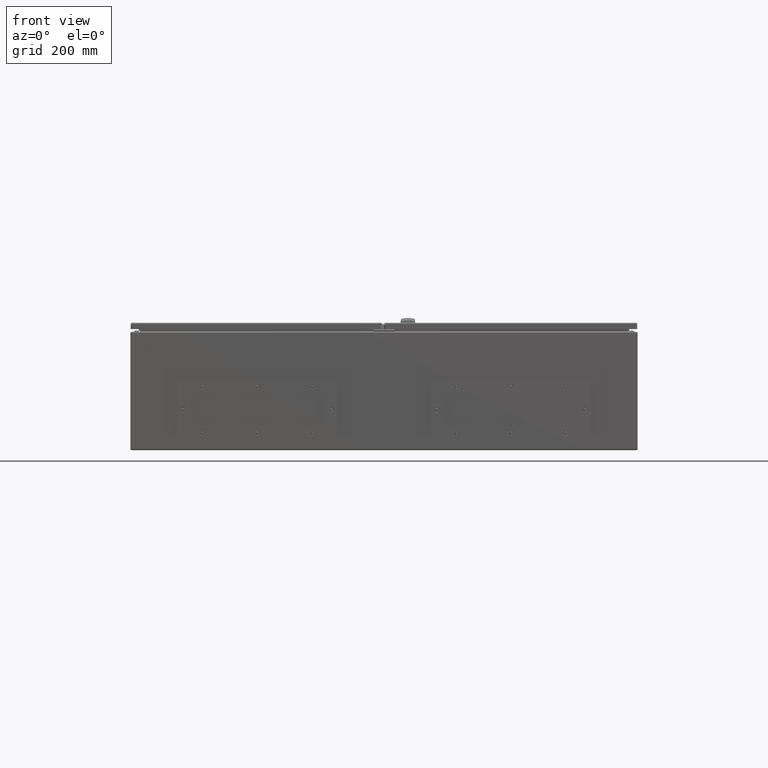
[diagram: clean part render]
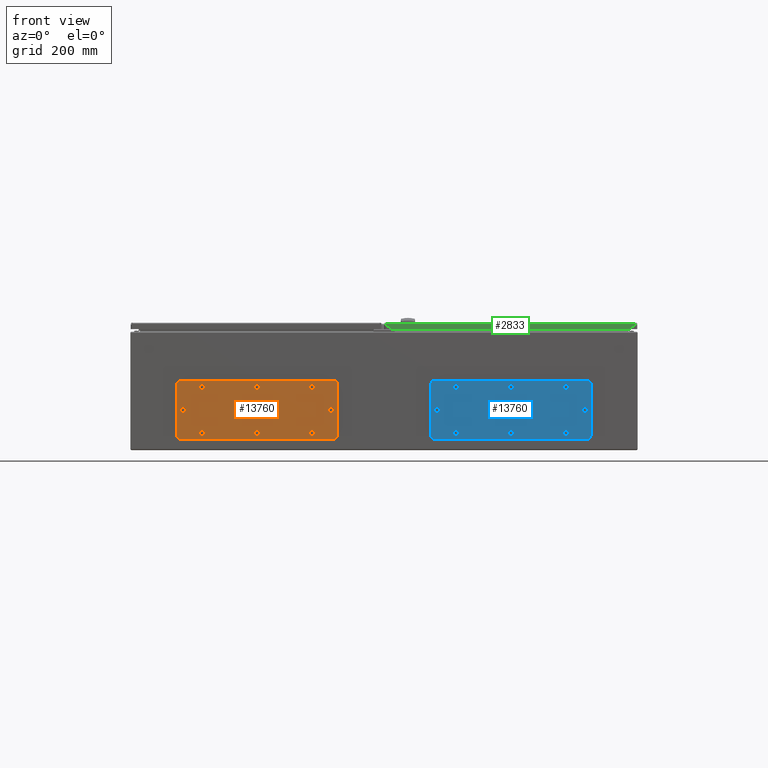
[diagram: same view with three faces highlighted in distinct colors, each labeled with its STEP entity id]
A machine part, front view with three faces highlighted in distinct colors.
Their STEP definitions:

[orange] entity #13760 — the highlighted planar face has unit normal (0, 1, 0).
#510 = DIRECTION ( 'NONE',  ( 0.01944479827874692100, -0.9998109320366021000, 0.0000000000000000000 ) ) ;
#526 = DIRECTION ( 'NONE',  ( 0.0000000000000000000, 0.0000000000000000000, -1.000000000000000000 ) ) ;
#529 = CARTESIAN_POINT ( 'NONE',  ( 175.0000000000000900, 7.052915043501256800E-014, 1.499999999907686300 ) ) ;
#1059 = DIRECTION ( 'NONE',  ( 0.0000000000000000000, 0.0000000000000000000, -1.000000000000000000 ) ) ;
#1079 = DIRECTION ( 'NONE',  ( 0.01944479827874692100, -0.9998109320366021000, 0.0000000000000000000 ) ) ;
#1123 = CARTESIAN_POINT ( 'NONE',  ( 130.0000000000000300, 54.99999999999995000, 1.499999999907686300 ) ) ;
#1194 = CARTESIAN_POINT ( 'NONE',  ( -180.0000000000000300, 69.99999999999997200, 1.500000000000000000 ) ) ;
#1201 = DIRECTION ( 'NONE',  ( -1.000000000000000000, 1.156482317317871200E-016, -0.0000000000000000000 ) ) ;
#13760 = ADVANCED_FACE ( 'NONE', ( #41910, #41892, #41921, #41923, #41915, #41913, #41919, #41922, #41924 ), #24781, .F. ) ;
#24781 = PLANE ( 'NONE',  #72295 ) ;
#24945 = DIRECTION ( 'NONE',  ( -0.0000000000000000000, 0.0000000000000000000, -1.000000000000000000 ) ) ;
#25119 = CARTESIAN_POINT ( 'NONE',  ( -180.0000000000000300, 60.00000000000000700, 1.500000000000000000 ) ) ;
#25740 = DIRECTION ( 'NONE',  ( -1.000000000000000000, 0.0000000000000000000, 0.0000000000000000000 ) ) ;
#26812 = CARTESIAN_POINT ( 'NONE',  ( 190.0000000000000600, -60.00000000000006400, 1.500000000000000000 ) ) ;
#41892 = FACE_BOUND ( 'NONE', #94646, .T. ) ;
#41910 = FACE_BOUND ( 'NONE', #96172, .T. ) ;
#41913 = FACE_BOUND ( 'NONE', #96192, .T. ) ;
#41915 = FACE_BOUND ( 'NONE', #94650, .T. ) ;
#41919 = FACE_BOUND ( 'NONE', #96189, .T. ) ;
#41921 = FACE_BOUND ( 'NONE', #96123, .T. ) ;
#41922 = FACE_BOUND ( 'NONE', #94865, .T. ) ;
#41923 = FACE_BOUND ( 'NONE', #96219, .T. ) ;
#41924 = FACE_OUTER_BOUND ( 'NONE', #96084, .T. ) ;
#49137 = DIRECTION ( 'NONE',  ( -0.0000000000000000000, 1.000000000000000000, -0.0000000000000000000 ) ) ;
#49164 = DIRECTION ( 'NONE',  ( 1.000000000000000000, 0.0000000000000000000, 0.0000000000000000000 ) ) ;
#49183 = CARTESIAN_POINT ( 'NONE',  ( -2.208518486838413600E-014, 54.99999999999999300, 1.499999999907686300 ) ) ;
#49201 = DIRECTION ( 'NONE',  ( 0.01944479827874692100, 0.9998109320366021000, 0.0000000000000000000 ) ) ;
#49210 = CARTESIAN_POINT ( 'NONE',  ( 130.0000000000000300, 54.99999999999995000, 1.499999999907686300 ) ) ;
#49223 = CARTESIAN_POINT ( 'NONE',  ( 130.0000000000000300, -54.99999999999995000, 1.499999999907686300 ) ) ;
#49243 = CARTESIAN_POINT ( 'NONE',  ( -180.0000000000000300, 60.00000000000000700, 1.500000000000000000 ) ) ;
#49266 = CARTESIAN_POINT ( 'NONE',  ( -175.0000000000000900, 7.052915043501256800E-014, 1.499999999907686300 ) ) ;
#49275 = DIRECTION ( 'NONE',  ( -0.0000000000000000000, -0.0000000000000000000, 1.000000000000000000 ) ) ;
#49300 = DIRECTION ( 'NONE',  ( -0.01944479827874607400, 0.9998109320366021000, 0.0000000000000000000 ) ) ;
#49309 = DIRECTION ( 'NONE',  ( 0.0000000000000000000, 0.0000000000000000000, 1.000000000000000000 ) ) ;
#49312 = DIRECTION ( 'NONE',  ( 0.0000000000000000000, 0.0000000000000000000, 1.000000000000000000 ) ) ;
#49334 = CARTESIAN_POINT ( 'NONE',  ( -2.208518486838413600E-014, 54.99999999999999300, 1.499999999907686300 ) ) ;
#49339 = DIRECTION ( 'NONE',  ( -0.0000000000000000000, -0.0000000000000000000, 1.000000000000000000 ) ) ;
#49350 = CARTESIAN_POINT ( 'NONE',  ( 190.0000000000000900, 60.00000000000006400, 1.500000000000000000 ) ) ;
#49396 = DIRECTION ( 'NONE',  ( 0.0000000000000000000, -0.0000000000000000000, -1.000000000000000000 ) ) ;
#49460 = DIRECTION ( 'NONE',  ( -0.0000000000000000000, -0.0000000000000000000, 1.000000000000000000 ) ) ;
#49471 = DIRECTION ( 'NONE',  ( 0.0000000000000000000, -0.0000000000000000000, -1.000000000000000000 ) ) ;
#49483 = DIRECTION ( 'NONE',  ( -0.01944479827874692100, 0.9998109320366021000, 0.0000000000000000000 ) ) ;
#49536 = DIRECTION ( 'NONE',  ( 0.0000000000000000000, -0.0000000000000000000, -1.000000000000000000 ) ) ;
#49551 = CARTESIAN_POINT ( 'NONE',  ( -130.0000000000000300, -54.99999999999995000, 1.499999999907686300 ) ) ;
#49555 = CARTESIAN_POINT ( 'NONE',  ( -130.0000000000000300, -54.99999999999995000, 1.499999999907686300 ) ) ;
#49561 = DIRECTION ( 'NONE',  ( -0.01944479827874607400, -0.9998109320366021000, 0.0000000000000000000 ) ) ;
#49603 = DIRECTION ( 'NONE',  ( -0.0000000000000000000, -0.0000000000000000000, 1.000000000000000000 ) ) ;
#49628 = CARTESIAN_POINT ( 'NONE',  ( -190.0000000000000900, 60.00000000000002100, 1.500000000000000000 ) ) ;
#49635 = DIRECTION ( 'NONE',  ( -0.0000000000000000000, -0.0000000000000000000, 1.000000000000000000 ) ) ;
#49658 = DIRECTION ( 'NONE',  ( -0.0000000000000000000, 0.0000000000000000000, 1.000000000000000000 ) ) ;
#49665 = DIRECTION ( 'NONE',  ( 1.000000000000000000, 0.0000000000000000000, 0.0000000000000000000 ) ) ;
#49679 = DIRECTION ( 'NONE',  ( 1.000000000000000000, 1.156482317317871200E-016, 0.0000000000000000000 ) ) ;
#49696 = DIRECTION ( 'NONE',  ( 0.0000000000000000000, -0.0000000000000000000, -1.000000000000000000 ) ) ;
#49741 = CARTESIAN_POINT ( 'NONE',  ( -180.0000000000000300, -69.99999999999997200, 1.500000000000000000 ) ) ;
#49749 = CARTESIAN_POINT ( 'NONE',  ( -175.0000000000000900, 7.052915043501256800E-014, 1.499999999907686300 ) ) ;
#49782 = CARTESIAN_POINT ( 'NONE',  ( 175.0000000000000900, 7.052915043501256800E-014, 1.499999999907686300 ) ) ;
#49790 = DIRECTION ( 'NONE',  ( -0.01944479827874692100, 0.9998109320366021000, 0.0000000000000000000 ) ) ;
#49793 = CARTESIAN_POINT ( 'NONE',  ( 180.0000000000000900, 59.99999999999996400, 1.500000000000000000 ) ) ;
#49796 = DIRECTION ( 'NONE',  ( 0.01944479827874692100, -0.9998109320366021000, 0.0000000000000000000 ) ) ;
#49872 = DIRECTION ( 'NONE',  ( -0.01944479827874692100, -0.9998109320366021000, 0.0000000000000000000 ) ) ;
#49895 = DIRECTION ( 'NONE',  ( 1.000000000000000000, 0.0000000000000000000, 0.0000000000000000000 ) ) ;
#49927 = DIRECTION ( 'NONE',  ( -1.000000000000000000, 0.0000000000000000000, 0.0000000000000000000 ) ) ;
#49953 = DIRECTION ( 'NONE',  ( -0.01944479827874692100, -0.9998109320366021000, 0.0000000000000000000 ) ) ;
#50057 = DIRECTION ( 'NONE',  ( 0.0000000000000000000, 0.0000000000000000000, -1.000000000000000000 ) ) ;
#50132 = DIRECTION ( 'NONE',  ( -0.0000000000000000000, 0.0000000000000000000, 1.000000000000000000 ) ) ;
#50135 = DIRECTION ( 'NONE',  ( -0.01944479827874692100, -0.9998109320366021000, 0.0000000000000000000 ) ) ;
#50140 = DIRECTION ( 'NONE',  ( 0.01944479827874692100, -0.9998109320366021000, 0.0000000000000000000 ) ) ;
#50150 = CARTESIAN_POINT ( 'NONE',  ( -130.0000000000000300, 54.99999999999995000, 1.499999999907686300 ) ) ;
#50151 = CARTESIAN_POINT ( 'NONE',  ( -130.0000000000000300, 54.99999999999995000, 1.499999999907686300 ) ) ;
#50161 = CARTESIAN_POINT ( 'NONE',  ( -2.208518486838413600E-014, -54.99999999999999300, 1.499999999907686300 ) ) ;
#50237 = DIRECTION ( 'NONE',  ( -0.01944479827874692100, -0.9998109320366021000, 0.0000000000000000000 ) ) ;
#50252 = DIRECTION ( 'NONE',  ( 0.0000000000000000000, 0.0000000000000000000, 1.000000000000000000 ) ) ;
#50344 = CARTESIAN_POINT ( 'NONE',  ( 180.0000000000000900, -59.99999999999996400, 1.500000000000000000 ) ) ;
#50382 = DIRECTION ( 'NONE',  ( 0.01944479827874692100, 0.9998109320366021000, 0.0000000000000000000 ) ) ;
#50447 = DIRECTION ( 'NONE',  ( -0.0000000000000000000, -0.0000000000000000000, 1.000000000000000000 ) ) ;
#50449 = DIRECTION ( 'NONE',  ( 4.625929269271481000E-016, -1.000000000000000000, 0.0000000000000000000 ) ) ;
#50453 = DIRECTION ( 'NONE',  ( 0.0000000000000000000, 0.0000000000000000000, 1.000000000000000000 ) ) ;
#50483 = DIRECTION ( 'NONE',  ( -0.01944479827874607400, -0.9998109320366021000, 0.0000000000000000000 ) ) ;
#50486 = CARTESIAN_POINT ( 'NONE',  ( -2.208518486838413600E-014, -54.99999999999999300, 1.499999999907686300 ) ) ;
#50513 = DIRECTION ( 'NONE',  ( -0.01944479827874607400, 0.9998109320366021000, 0.0000000000000000000 ) ) ;
#50516 = DIRECTION ( 'NONE',  ( 0.0000000000000000000, 0.0000000000000000000, -1.000000000000000000 ) ) ;
#50575 = CARTESIAN_POINT ( 'NONE',  ( 130.0000000000000300, -54.99999999999995000, 1.499999999907686300 ) ) ;
#50666 = CARTESIAN_POINT ( 'NONE',  ( -180.0000000000000300, -60.00000000000000700, 1.500000000000000000 ) ) ;
#51064 = EDGE_CURVE ( 'NONE', #61314, #61284, #71144, .T. ) ;
#51067 = EDGE_CURVE ( 'NONE', #59449, #59029, #71140, .T. ) ;
#51105 = EDGE_CURVE ( 'NONE', #61456, #61336, #71244, .T. ) ;
#51115 = EDGE_CURVE ( 'NONE', #59517, #59404, #71257, .T. ) ;
#51116 = EDGE_CURVE ( 'NONE', #58960, #60235, #71268, .T. ) ;
#51118 = EDGE_CURVE ( 'NONE', #61336, #61456, #71273, .T. ) ;
#51120 = EDGE_CURVE ( 'NONE', #59564, #59419, #71280, .T. ) ;
#51127 = EDGE_CURVE ( 'NONE', #61331, #61292, #71298, .T. ) ;
#51131 = EDGE_CURVE ( 'NONE', #58600, #61132, #71309, .T. ) ;
#51134 = EDGE_CURVE ( 'NONE', #61255, #61222, #71316, .T. ) ;
#51136 = EDGE_CURVE ( 'NONE', #61146, #61141, #71320, .T. ) ;
#51139 = EDGE_CURVE ( 'NONE', #61284, #61314, #71329, .T. ) ;
#51152 = EDGE_CURVE ( 'NONE', #60091, #59449, #71363, .T. ) ;
#51154 = EDGE_CURVE ( 'NONE', #58478, #60091, #71365, .T. ) ;
#51160 = EDGE_CURVE ( 'NONE', #59404, #58478, #71386, .T. ) ;
#51166 = EDGE_CURVE ( 'NONE', #60278, #59517, #71401, .T. ) ;
#51178 = EDGE_CURVE ( 'NONE', #59029, #58867, #71433, .T. ) ;
#51185 = EDGE_CURVE ( 'NONE', #59419, #59564, #71449, .T. ) ;
#51198 = EDGE_CURVE ( 'NONE', #58867, #60278, #71473, .T. ) ;
#51222 = EDGE_CURVE ( 'NONE', #60235, #58960, #71542, .T. ) ;
#51258 = EDGE_CURVE ( 'NONE', #61132, #58600, #56219, .T. ) ;
#51425 = EDGE_CURVE ( 'NONE', #61141, #61146, #56497, .T. ) ;
#51442 = EDGE_CURVE ( 'NONE', #61292, #61331, #56522, .T. ) ;
#51513 = EDGE_CURVE ( 'NONE', #61222, #61255, #56622, .T. ) ;
#56219 = CIRCLE ( 'NONE', #73862, 6.383543879575676700 ) ;
#56497 = CIRCLE ( 'NONE', #73776, 6.383543879575676700 ) ;
#56522 = CIRCLE ( 'NONE', #72897, 6.383543879575676700 ) ;
#56622 = CIRCLE ( 'NONE', #73404, 6.383543879575676700 ) ;
#58478 = VERTEX_POINT ( 'NONE', #26812 ) ;
#58600 = VERTEX_POINT ( 'NONE', #65915 ) ;
#58867 = VERTEX_POINT ( 'NONE', #66504 ) ;
#58960 = VERTEX_POINT ( 'NONE', #66962 ) ;
#59029 = VERTEX_POINT ( 'NONE', #65897 ) ;
#59404 = VERTEX_POINT ( 'NONE', #65688 ) ;
#59419 = VERTEX_POINT ( 'NONE', #67678 ) ;
#59449 = VERTEX_POINT ( 'NONE', #66206 ) ;
#59517 = VERTEX_POINT ( 'NONE', #65707 ) ;
#59564 = VERTEX_POINT ( 'NONE', #66211 ) ;
#60091 = VERTEX_POINT ( 'NONE', #66648 ) ;
#60235 = VERTEX_POINT ( 'NONE', #66183 ) ;
#60278 = VERTEX_POINT ( 'NONE', #65899 ) ;
#61132 = VERTEX_POINT ( 'NONE', #66586 ) ;
#61141 = VERTEX_POINT ( 'NONE', #65974 ) ;
#61146 = VERTEX_POINT ( 'NONE', #66169 ) ;
#61222 = VERTEX_POINT ( 'NONE', #65840 ) ;
#61255 = VERTEX_POINT ( 'NONE', #65658 ) ;
#61284 = VERTEX_POINT ( 'NONE', #65711 ) ;
#61292 = VERTEX_POINT ( 'NONE', #65865 ) ;
#61314 = VERTEX_POINT ( 'NONE', #65666 ) ;
#61331 = VERTEX_POINT ( 'NONE', #66139 ) ;
#61336 = VERTEX_POINT ( 'NONE', #65953 ) ;
#61456 = VERTEX_POINT ( 'NONE', #66181 ) ;
#65658 = CARTESIAN_POINT ( 'NONE',  ( 130.1241267230419100, -48.61766304406484800, 1.499999999907686500 ) ) ;
#65666 = CARTESIAN_POINT ( 'NONE',  ( 129.8758732769581500, 61.38233695593505200, 1.499999999907686500 ) ) ;
#65688 = CARTESIAN_POINT ( 'NONE',  ( 180.0000000000000900, -69.99999999999992900, 1.500000000000000000 ) ) ;
#65707 = CARTESIAN_POINT ( 'NONE',  ( -180.0000000000000300, -69.99999999999998600, 1.500000000000000000 ) ) ;
#65711 = CARTESIAN_POINT ( 'NONE',  ( 130.1241267230419100, 48.61766304406484800, 1.499999999907686500 ) ) ;
#65840 = CARTESIAN_POINT ( 'NONE',  ( 129.8758732769581500, -61.38233695593505200, 1.499999999907686500 ) ) ;
#65865 = CARTESIAN_POINT ( 'NONE',  ( -0.1241267230418952500, -48.61766304406489100, 1.499999999907686500 ) ) ;
#65897 = CARTESIAN_POINT ( 'NONE',  ( -180.0000000000000300, 69.99999999999997200, 1.500000000000000000 ) ) ;
#65899 = CARTESIAN_POINT ( 'NONE',  ( -190.0000000000000300, -60.00000000000011400, 1.500000000000000000 ) ) ;
#65915 = CARTESIAN_POINT ( 'NONE',  ( -130.1241267230419100, 48.61766304406484800, 1.499999999907686500 ) ) ;
#65953 = CARTESIAN_POINT ( 'NONE',  ( 174.8758732769582000, 6.382336955935173300, 1.499999999907686500 ) ) ;
#65974 = CARTESIAN_POINT ( 'NONE',  ( -130.1241267230419100, -48.61766304406484800, 1.499999999907686500 ) ) ;
#66139 = CARTESIAN_POINT ( 'NONE',  ( 0.1241267230418518200, -61.38233695593509500, 1.499999999907686500 ) ) ;
#66169 = CARTESIAN_POINT ( 'NONE',  ( -129.8758732769581500, -61.38233695593505200, 1.499999999907686500 ) ) ;
#66181 = CARTESIAN_POINT ( 'NONE',  ( 175.1241267230419400, -6.382336955935032900, 1.499999999907686500 ) ) ;
#66183 = CARTESIAN_POINT ( 'NONE',  ( -174.8758732769582000, 6.382336955935173300, 1.499999999907686500 ) ) ;
#66206 = CARTESIAN_POINT ( 'NONE',  ( 180.0000000000000900, 69.99999999999995700, 1.500000000000000000 ) ) ;
#66211 = CARTESIAN_POINT ( 'NONE',  ( -0.1241267230418952500, 48.61766304406489100, 1.499999999907686500 ) ) ;
#66504 = CARTESIAN_POINT ( 'NONE',  ( -190.0000000000000900, 60.00000000000002100, 1.500000000000000000 ) ) ;
#66586 = CARTESIAN_POINT ( 'NONE',  ( -129.8758732769581500, 61.38233695593505200, 1.499999999907686500 ) ) ;
#66648 = CARTESIAN_POINT ( 'NONE',  ( 190.0000000000000900, 60.00000000000006400, 1.500000000000000000 ) ) ;
#66962 = CARTESIAN_POINT ( 'NONE',  ( -175.1241267230419400, -6.382336955935032900, 1.499999999907686500 ) ) ;
#67678 = CARTESIAN_POINT ( 'NONE',  ( 0.1241267230418502800, 61.38233695593509500, 1.499999999907686500 ) ) ;
#71128 = VECTOR ( 'NONE', #1201, 1000.000000000000000 ) ;
#71140 = LINE ( 'NONE', #1194, #71128 ) ;
#71144 = CIRCLE ( 'NONE', #73515, 6.383543879575676700 ) ;
#71244 = CIRCLE ( 'NONE', #73241, 6.383543879575675800 ) ;
#71250 = VECTOR ( 'NONE', #49679, 1000.000000000000000 ) ;
#71257 = LINE ( 'NONE', #49741, #71250 ) ;
#71268 = CIRCLE ( 'NONE', #72979, 6.383543879575675800 ) ;
#71273 = CIRCLE ( 'NONE', #73860, 6.383543879575675800 ) ;
#71280 = CIRCLE ( 'NONE', #73597, 6.383543879575676700 ) ;
#71298 = CIRCLE ( 'NONE', #73283, 6.383543879575676700 ) ;
#71309 = CIRCLE ( 'NONE', #73864, 6.383543879575676700 ) ;
#71316 = CIRCLE ( 'NONE', #73145, 6.383543879575676700 ) ;
#71320 = CIRCLE ( 'NONE', #72831, 6.383543879575676700 ) ;
#71329 = CIRCLE ( 'NONE', #73520, 6.383543879575676700 ) ;
#71363 = CIRCLE ( 'NONE', #73700, 9.999999999999980500 ) ;
#71365 = LINE ( 'NONE', #49350, #71367 ) ;
#71367 = VECTOR ( 'NONE', #49137, 1000.000000000000000 ) ;
#71386 = CIRCLE ( 'NONE', #73373, 9.999999999999980500 ) ;
#71401 = CIRCLE ( 'NONE', #73005, 9.999999999999980500 ) ;
#71433 = CIRCLE ( 'NONE', #73314, 10.00000000000000900 ) ;
#71449 = CIRCLE ( 'NONE', #73804, 6.383543879575676700 ) ;
#71473 = LINE ( 'NONE', #49628, #71477 ) ;
#71477 = VECTOR ( 'NONE', #50449, 1000.000000000000000 ) ;
#71542 = CIRCLE ( 'NONE', #73138, 6.383543879575675800 ) ;
#72295 = AXIS2_PLACEMENT_3D ( 'NONE', #25119, #24945, #25740 ) ;
#72831 = AXIS2_PLACEMENT_3D ( 'NONE', #49551, #49471, #49790 ) ;
#72897 = AXIS2_PLACEMENT_3D ( 'NONE', #50161, #49396, #50513 ) ;
#72979 = AXIS2_PLACEMENT_3D ( 'NONE', #49266, #49339, #50237 ) ;
#73005 = AXIS2_PLACEMENT_3D ( 'NONE', #50666, #50252, #49895 ) ;
#73138 = AXIS2_PLACEMENT_3D ( 'NONE', #49749, #49275, #49872 ) ;
#73145 = AXIS2_PLACEMENT_3D ( 'NONE', #50575, #49658, #49201 ) ;
#73241 = AXIS2_PLACEMENT_3D ( 'NONE', #529, #526, #510 ) ;
#73283 = AXIS2_PLACEMENT_3D ( 'NONE', #50486, #49536, #49300 ) ;
#73314 = AXIS2_PLACEMENT_3D ( 'NONE', #49243, #50453, #49927 ) ;
#73373 = AXIS2_PLACEMENT_3D ( 'NONE', #50344, #49312, #49665 ) ;
#73404 = AXIS2_PLACEMENT_3D ( 'NONE', #49223, #50132, #50382 ) ;
#73515 = AXIS2_PLACEMENT_3D ( 'NONE', #1123, #1059, #1079 ) ;
#73520 = AXIS2_PLACEMENT_3D ( 'NONE', #49210, #50516, #49796 ) ;
#73597 = AXIS2_PLACEMENT_3D ( 'NONE', #49183, #49460, #50483 ) ;
#73700 = AXIS2_PLACEMENT_3D ( 'NONE', #49793, #49309, #49164 ) ;
#73776 = AXIS2_PLACEMENT_3D ( 'NONE', #49555, #49696, #49483 ) ;
#73804 = AXIS2_PLACEMENT_3D ( 'NONE', #49334, #49603, #49561 ) ;
#73860 = AXIS2_PLACEMENT_3D ( 'NONE', #49782, #50057, #50140 ) ;
#73862 = AXIS2_PLACEMENT_3D ( 'NONE', #50150, #49635, #50135 ) ;
#73864 = AXIS2_PLACEMENT_3D ( 'NONE', #50151, #50447, #49953 ) ;
#77263 = ORIENTED_EDGE ( 'NONE', *, *, #51064, .T. ) ;
#77265 = ORIENTED_EDGE ( 'NONE', *, *, #51136, .T. ) ;
#77266 = ORIENTED_EDGE ( 'NONE', *, *, #51105, .T. ) ;
#77267 = ORIENTED_EDGE ( 'NONE', *, *, #51134, .F. ) ;
#77271 = ORIENTED_EDGE ( 'NONE', *, *, #51513, .F. ) ;
#77273 = ORIENTED_EDGE ( 'NONE', *, *, #51442, .T. ) ;
#77276 = ORIENTED_EDGE ( 'NONE', *, *, #51118, .T. ) ;
#77279 = ORIENTED_EDGE ( 'NONE', *, *, #51120, .F. ) ;
#77289 = ORIENTED_EDGE ( 'NONE', *, *, #51185, .F. ) ;
#77292 = ORIENTED_EDGE ( 'NONE', *, *, #51131, .F. ) ;
#77305 = ORIENTED_EDGE ( 'NONE', *, *, #51154, .T. ) ;
#77306 = ORIENTED_EDGE ( 'NONE', *, *, #51152, .T. ) ;
#77307 = ORIENTED_EDGE ( 'NONE', *, *, #51067, .T. ) ;
#77338 = ORIENTED_EDGE ( 'NONE', *, *, #51127, .T. ) ;
#77339 = ORIENTED_EDGE ( 'NONE', *, *, #51139, .T. ) ;
#77351 = ORIENTED_EDGE ( 'NONE', *, *, #51178, .T. ) ;
#77352 = ORIENTED_EDGE ( 'NONE', *, *, #51222, .F. ) ;
#77383 = ORIENTED_EDGE ( 'NONE', *, *, #51425, .T. ) ;
#77425 = ORIENTED_EDGE ( 'NONE', *, *, #51166, .T. ) ;
#77431 = ORIENTED_EDGE ( 'NONE', *, *, #51198, .T. ) ;
#77449 = ORIENTED_EDGE ( 'NONE', *, *, #51258, .F. ) ;
#77452 = ORIENTED_EDGE ( 'NONE', *, *, #51116, .F. ) ;
#77498 = ORIENTED_EDGE ( 'NONE', *, *, #51160, .T. ) ;
#77500 = ORIENTED_EDGE ( 'NONE', *, *, #51115, .T. ) ;
#94646 = EDGE_LOOP ( 'NONE', ( #77267, #77271 ) ) ;
#94650 = EDGE_LOOP ( 'NONE', ( #77266, #77276 ) ) ;
#94865 = EDGE_LOOP ( 'NONE', ( #77452, #77352 ) ) ;
#96084 = EDGE_LOOP ( 'NONE', ( #77351, #77431, #77425, #77500, #77498, #77305, #77306, #77307 ) ) ;
#96123 = EDGE_LOOP ( 'NONE', ( #77273, #77338 ) ) ;
#96172 = EDGE_LOOP ( 'NONE', ( #77383, #77265 ) ) ;
#96189 = EDGE_LOOP ( 'NONE', ( #77292, #77449 ) ) ;
#96192 = EDGE_LOOP ( 'NONE', ( #77279, #77289 ) ) ;
#96219 = EDGE_LOOP ( 'NONE', ( #77339, #77263 ) ) ;

[blue] entity #13760 — the highlighted planar face has unit normal (0, 1, -0).
#510 = DIRECTION ( 'NONE',  ( 0.01944479827874692100, -0.9998109320366021000, 0.0000000000000000000 ) ) ;
#526 = DIRECTION ( 'NONE',  ( 0.0000000000000000000, 0.0000000000000000000, -1.000000000000000000 ) ) ;
#529 = CARTESIAN_POINT ( 'NONE',  ( 175.0000000000000900, 7.052915043501256800E-014, 1.499999999907686300 ) ) ;
#1059 = DIRECTION ( 'NONE',  ( 0.0000000000000000000, 0.0000000000000000000, -1.000000000000000000 ) ) ;
#1079 = DIRECTION ( 'NONE',  ( 0.01944479827874692100, -0.9998109320366021000, 0.0000000000000000000 ) ) ;
#1123 = CARTESIAN_POINT ( 'NONE',  ( 130.0000000000000300, 54.99999999999995000, 1.499999999907686300 ) ) ;
#1194 = CARTESIAN_POINT ( 'NONE',  ( -180.0000000000000300, 69.99999999999997200, 1.500000000000000000 ) ) ;
#1201 = DIRECTION ( 'NONE',  ( -1.000000000000000000, 1.156482317317871200E-016, -0.0000000000000000000 ) ) ;
#13760 = ADVANCED_FACE ( 'NONE', ( #41910, #41892, #41921, #41923, #41915, #41913, #41919, #41922, #41924 ), #24781, .F. ) ;
#24781 = PLANE ( 'NONE',  #72295 ) ;
#24945 = DIRECTION ( 'NONE',  ( -0.0000000000000000000, 0.0000000000000000000, -1.000000000000000000 ) ) ;
#25119 = CARTESIAN_POINT ( 'NONE',  ( -180.0000000000000300, 60.00000000000000700, 1.500000000000000000 ) ) ;
#25740 = DIRECTION ( 'NONE',  ( -1.000000000000000000, 0.0000000000000000000, 0.0000000000000000000 ) ) ;
#26812 = CARTESIAN_POINT ( 'NONE',  ( 190.0000000000000600, -60.00000000000006400, 1.500000000000000000 ) ) ;
#41892 = FACE_BOUND ( 'NONE', #94646, .T. ) ;
#41910 = FACE_BOUND ( 'NONE', #96172, .T. ) ;
#41913 = FACE_BOUND ( 'NONE', #96192, .T. ) ;
#41915 = FACE_BOUND ( 'NONE', #94650, .T. ) ;
#41919 = FACE_BOUND ( 'NONE', #96189, .T. ) ;
#41921 = FACE_BOUND ( 'NONE', #96123, .T. ) ;
#41922 = FACE_BOUND ( 'NONE', #94865, .T. ) ;
#41923 = FACE_BOUND ( 'NONE', #96219, .T. ) ;
#41924 = FACE_OUTER_BOUND ( 'NONE', #96084, .T. ) ;
#49137 = DIRECTION ( 'NONE',  ( -0.0000000000000000000, 1.000000000000000000, -0.0000000000000000000 ) ) ;
#49164 = DIRECTION ( 'NONE',  ( 1.000000000000000000, 0.0000000000000000000, 0.0000000000000000000 ) ) ;
#49183 = CARTESIAN_POINT ( 'NONE',  ( -2.208518486838413600E-014, 54.99999999999999300, 1.499999999907686300 ) ) ;
#49201 = DIRECTION ( 'NONE',  ( 0.01944479827874692100, 0.9998109320366021000, 0.0000000000000000000 ) ) ;
#49210 = CARTESIAN_POINT ( 'NONE',  ( 130.0000000000000300, 54.99999999999995000, 1.499999999907686300 ) ) ;
#49223 = CARTESIAN_POINT ( 'NONE',  ( 130.0000000000000300, -54.99999999999995000, 1.499999999907686300 ) ) ;
#49243 = CARTESIAN_POINT ( 'NONE',  ( -180.0000000000000300, 60.00000000000000700, 1.500000000000000000 ) ) ;
#49266 = CARTESIAN_POINT ( 'NONE',  ( -175.0000000000000900, 7.052915043501256800E-014, 1.499999999907686300 ) ) ;
#49275 = DIRECTION ( 'NONE',  ( -0.0000000000000000000, -0.0000000000000000000, 1.000000000000000000 ) ) ;
#49300 = DIRECTION ( 'NONE',  ( -0.01944479827874607400, 0.9998109320366021000, 0.0000000000000000000 ) ) ;
#49309 = DIRECTION ( 'NONE',  ( 0.0000000000000000000, 0.0000000000000000000, 1.000000000000000000 ) ) ;
#49312 = DIRECTION ( 'NONE',  ( 0.0000000000000000000, 0.0000000000000000000, 1.000000000000000000 ) ) ;
#49334 = CARTESIAN_POINT ( 'NONE',  ( -2.208518486838413600E-014, 54.99999999999999300, 1.499999999907686300 ) ) ;
#49339 = DIRECTION ( 'NONE',  ( -0.0000000000000000000, -0.0000000000000000000, 1.000000000000000000 ) ) ;
#49350 = CARTESIAN_POINT ( 'NONE',  ( 190.0000000000000900, 60.00000000000006400, 1.500000000000000000 ) ) ;
#49396 = DIRECTION ( 'NONE',  ( 0.0000000000000000000, -0.0000000000000000000, -1.000000000000000000 ) ) ;
#49460 = DIRECTION ( 'NONE',  ( -0.0000000000000000000, -0.0000000000000000000, 1.000000000000000000 ) ) ;
#49471 = DIRECTION ( 'NONE',  ( 0.0000000000000000000, -0.0000000000000000000, -1.000000000000000000 ) ) ;
#49483 = DIRECTION ( 'NONE',  ( -0.01944479827874692100, 0.9998109320366021000, 0.0000000000000000000 ) ) ;
#49536 = DIRECTION ( 'NONE',  ( 0.0000000000000000000, -0.0000000000000000000, -1.000000000000000000 ) ) ;
#49551 = CARTESIAN_POINT ( 'NONE',  ( -130.0000000000000300, -54.99999999999995000, 1.499999999907686300 ) ) ;
#49555 = CARTESIAN_POINT ( 'NONE',  ( -130.0000000000000300, -54.99999999999995000, 1.499999999907686300 ) ) ;
#49561 = DIRECTION ( 'NONE',  ( -0.01944479827874607400, -0.9998109320366021000, 0.0000000000000000000 ) ) ;
#49603 = DIRECTION ( 'NONE',  ( -0.0000000000000000000, -0.0000000000000000000, 1.000000000000000000 ) ) ;
#49628 = CARTESIAN_POINT ( 'NONE',  ( -190.0000000000000900, 60.00000000000002100, 1.500000000000000000 ) ) ;
#49635 = DIRECTION ( 'NONE',  ( -0.0000000000000000000, -0.0000000000000000000, 1.000000000000000000 ) ) ;
#49658 = DIRECTION ( 'NONE',  ( -0.0000000000000000000, 0.0000000000000000000, 1.000000000000000000 ) ) ;
#49665 = DIRECTION ( 'NONE',  ( 1.000000000000000000, 0.0000000000000000000, 0.0000000000000000000 ) ) ;
#49679 = DIRECTION ( 'NONE',  ( 1.000000000000000000, 1.156482317317871200E-016, 0.0000000000000000000 ) ) ;
#49696 = DIRECTION ( 'NONE',  ( 0.0000000000000000000, -0.0000000000000000000, -1.000000000000000000 ) ) ;
#49741 = CARTESIAN_POINT ( 'NONE',  ( -180.0000000000000300, -69.99999999999997200, 1.500000000000000000 ) ) ;
#49749 = CARTESIAN_POINT ( 'NONE',  ( -175.0000000000000900, 7.052915043501256800E-014, 1.499999999907686300 ) ) ;
#49782 = CARTESIAN_POINT ( 'NONE',  ( 175.0000000000000900, 7.052915043501256800E-014, 1.499999999907686300 ) ) ;
#49790 = DIRECTION ( 'NONE',  ( -0.01944479827874692100, 0.9998109320366021000, 0.0000000000000000000 ) ) ;
#49793 = CARTESIAN_POINT ( 'NONE',  ( 180.0000000000000900, 59.99999999999996400, 1.500000000000000000 ) ) ;
#49796 = DIRECTION ( 'NONE',  ( 0.01944479827874692100, -0.9998109320366021000, 0.0000000000000000000 ) ) ;
#49872 = DIRECTION ( 'NONE',  ( -0.01944479827874692100, -0.9998109320366021000, 0.0000000000000000000 ) ) ;
#49895 = DIRECTION ( 'NONE',  ( 1.000000000000000000, 0.0000000000000000000, 0.0000000000000000000 ) ) ;
#49927 = DIRECTION ( 'NONE',  ( -1.000000000000000000, 0.0000000000000000000, 0.0000000000000000000 ) ) ;
#49953 = DIRECTION ( 'NONE',  ( -0.01944479827874692100, -0.9998109320366021000, 0.0000000000000000000 ) ) ;
#50057 = DIRECTION ( 'NONE',  ( 0.0000000000000000000, 0.0000000000000000000, -1.000000000000000000 ) ) ;
#50132 = DIRECTION ( 'NONE',  ( -0.0000000000000000000, 0.0000000000000000000, 1.000000000000000000 ) ) ;
#50135 = DIRECTION ( 'NONE',  ( -0.01944479827874692100, -0.9998109320366021000, 0.0000000000000000000 ) ) ;
#50140 = DIRECTION ( 'NONE',  ( 0.01944479827874692100, -0.9998109320366021000, 0.0000000000000000000 ) ) ;
#50150 = CARTESIAN_POINT ( 'NONE',  ( -130.0000000000000300, 54.99999999999995000, 1.499999999907686300 ) ) ;
#50151 = CARTESIAN_POINT ( 'NONE',  ( -130.0000000000000300, 54.99999999999995000, 1.499999999907686300 ) ) ;
#50161 = CARTESIAN_POINT ( 'NONE',  ( -2.208518486838413600E-014, -54.99999999999999300, 1.499999999907686300 ) ) ;
#50237 = DIRECTION ( 'NONE',  ( -0.01944479827874692100, -0.9998109320366021000, 0.0000000000000000000 ) ) ;
#50252 = DIRECTION ( 'NONE',  ( 0.0000000000000000000, 0.0000000000000000000, 1.000000000000000000 ) ) ;
#50344 = CARTESIAN_POINT ( 'NONE',  ( 180.0000000000000900, -59.99999999999996400, 1.500000000000000000 ) ) ;
#50382 = DIRECTION ( 'NONE',  ( 0.01944479827874692100, 0.9998109320366021000, 0.0000000000000000000 ) ) ;
#50447 = DIRECTION ( 'NONE',  ( -0.0000000000000000000, -0.0000000000000000000, 1.000000000000000000 ) ) ;
#50449 = DIRECTION ( 'NONE',  ( 4.625929269271481000E-016, -1.000000000000000000, 0.0000000000000000000 ) ) ;
#50453 = DIRECTION ( 'NONE',  ( 0.0000000000000000000, 0.0000000000000000000, 1.000000000000000000 ) ) ;
#50483 = DIRECTION ( 'NONE',  ( -0.01944479827874607400, -0.9998109320366021000, 0.0000000000000000000 ) ) ;
#50486 = CARTESIAN_POINT ( 'NONE',  ( -2.208518486838413600E-014, -54.99999999999999300, 1.499999999907686300 ) ) ;
#50513 = DIRECTION ( 'NONE',  ( -0.01944479827874607400, 0.9998109320366021000, 0.0000000000000000000 ) ) ;
#50516 = DIRECTION ( 'NONE',  ( 0.0000000000000000000, 0.0000000000000000000, -1.000000000000000000 ) ) ;
#50575 = CARTESIAN_POINT ( 'NONE',  ( 130.0000000000000300, -54.99999999999995000, 1.499999999907686300 ) ) ;
#50666 = CARTESIAN_POINT ( 'NONE',  ( -180.0000000000000300, -60.00000000000000700, 1.500000000000000000 ) ) ;
#51064 = EDGE_CURVE ( 'NONE', #61314, #61284, #71144, .T. ) ;
#51067 = EDGE_CURVE ( 'NONE', #59449, #59029, #71140, .T. ) ;
#51105 = EDGE_CURVE ( 'NONE', #61456, #61336, #71244, .T. ) ;
#51115 = EDGE_CURVE ( 'NONE', #59517, #59404, #71257, .T. ) ;
#51116 = EDGE_CURVE ( 'NONE', #58960, #60235, #71268, .T. ) ;
#51118 = EDGE_CURVE ( 'NONE', #61336, #61456, #71273, .T. ) ;
#51120 = EDGE_CURVE ( 'NONE', #59564, #59419, #71280, .T. ) ;
#51127 = EDGE_CURVE ( 'NONE', #61331, #61292, #71298, .T. ) ;
#51131 = EDGE_CURVE ( 'NONE', #58600, #61132, #71309, .T. ) ;
#51134 = EDGE_CURVE ( 'NONE', #61255, #61222, #71316, .T. ) ;
#51136 = EDGE_CURVE ( 'NONE', #61146, #61141, #71320, .T. ) ;
#51139 = EDGE_CURVE ( 'NONE', #61284, #61314, #71329, .T. ) ;
#51152 = EDGE_CURVE ( 'NONE', #60091, #59449, #71363, .T. ) ;
#51154 = EDGE_CURVE ( 'NONE', #58478, #60091, #71365, .T. ) ;
#51160 = EDGE_CURVE ( 'NONE', #59404, #58478, #71386, .T. ) ;
#51166 = EDGE_CURVE ( 'NONE', #60278, #59517, #71401, .T. ) ;
#51178 = EDGE_CURVE ( 'NONE', #59029, #58867, #71433, .T. ) ;
#51185 = EDGE_CURVE ( 'NONE', #59419, #59564, #71449, .T. ) ;
#51198 = EDGE_CURVE ( 'NONE', #58867, #60278, #71473, .T. ) ;
#51222 = EDGE_CURVE ( 'NONE', #60235, #58960, #71542, .T. ) ;
#51258 = EDGE_CURVE ( 'NONE', #61132, #58600, #56219, .T. ) ;
#51425 = EDGE_CURVE ( 'NONE', #61141, #61146, #56497, .T. ) ;
#51442 = EDGE_CURVE ( 'NONE', #61292, #61331, #56522, .T. ) ;
#51513 = EDGE_CURVE ( 'NONE', #61222, #61255, #56622, .T. ) ;
#56219 = CIRCLE ( 'NONE', #73862, 6.383543879575676700 ) ;
#56497 = CIRCLE ( 'NONE', #73776, 6.383543879575676700 ) ;
#56522 = CIRCLE ( 'NONE', #72897, 6.383543879575676700 ) ;
#56622 = CIRCLE ( 'NONE', #73404, 6.383543879575676700 ) ;
#58478 = VERTEX_POINT ( 'NONE', #26812 ) ;
#58600 = VERTEX_POINT ( 'NONE', #65915 ) ;
#58867 = VERTEX_POINT ( 'NONE', #66504 ) ;
#58960 = VERTEX_POINT ( 'NONE', #66962 ) ;
#59029 = VERTEX_POINT ( 'NONE', #65897 ) ;
#59404 = VERTEX_POINT ( 'NONE', #65688 ) ;
#59419 = VERTEX_POINT ( 'NONE', #67678 ) ;
#59449 = VERTEX_POINT ( 'NONE', #66206 ) ;
#59517 = VERTEX_POINT ( 'NONE', #65707 ) ;
#59564 = VERTEX_POINT ( 'NONE', #66211 ) ;
#60091 = VERTEX_POINT ( 'NONE', #66648 ) ;
#60235 = VERTEX_POINT ( 'NONE', #66183 ) ;
#60278 = VERTEX_POINT ( 'NONE', #65899 ) ;
#61132 = VERTEX_POINT ( 'NONE', #66586 ) ;
#61141 = VERTEX_POINT ( 'NONE', #65974 ) ;
#61146 = VERTEX_POINT ( 'NONE', #66169 ) ;
#61222 = VERTEX_POINT ( 'NONE', #65840 ) ;
#61255 = VERTEX_POINT ( 'NONE', #65658 ) ;
#61284 = VERTEX_POINT ( 'NONE', #65711 ) ;
#61292 = VERTEX_POINT ( 'NONE', #65865 ) ;
#61314 = VERTEX_POINT ( 'NONE', #65666 ) ;
#61331 = VERTEX_POINT ( 'NONE', #66139 ) ;
#61336 = VERTEX_POINT ( 'NONE', #65953 ) ;
#61456 = VERTEX_POINT ( 'NONE', #66181 ) ;
#65658 = CARTESIAN_POINT ( 'NONE',  ( 130.1241267230419100, -48.61766304406484800, 1.499999999907686500 ) ) ;
#65666 = CARTESIAN_POINT ( 'NONE',  ( 129.8758732769581500, 61.38233695593505200, 1.499999999907686500 ) ) ;
#65688 = CARTESIAN_POINT ( 'NONE',  ( 180.0000000000000900, -69.99999999999992900, 1.500000000000000000 ) ) ;
#65707 = CARTESIAN_POINT ( 'NONE',  ( -180.0000000000000300, -69.99999999999998600, 1.500000000000000000 ) ) ;
#65711 = CARTESIAN_POINT ( 'NONE',  ( 130.1241267230419100, 48.61766304406484800, 1.499999999907686500 ) ) ;
#65840 = CARTESIAN_POINT ( 'NONE',  ( 129.8758732769581500, -61.38233695593505200, 1.499999999907686500 ) ) ;
#65865 = CARTESIAN_POINT ( 'NONE',  ( -0.1241267230418952500, -48.61766304406489100, 1.499999999907686500 ) ) ;
#65897 = CARTESIAN_POINT ( 'NONE',  ( -180.0000000000000300, 69.99999999999997200, 1.500000000000000000 ) ) ;
#65899 = CARTESIAN_POINT ( 'NONE',  ( -190.0000000000000300, -60.00000000000011400, 1.500000000000000000 ) ) ;
#65915 = CARTESIAN_POINT ( 'NONE',  ( -130.1241267230419100, 48.61766304406484800, 1.499999999907686500 ) ) ;
#65953 = CARTESIAN_POINT ( 'NONE',  ( 174.8758732769582000, 6.382336955935173300, 1.499999999907686500 ) ) ;
#65974 = CARTESIAN_POINT ( 'NONE',  ( -130.1241267230419100, -48.61766304406484800, 1.499999999907686500 ) ) ;
#66139 = CARTESIAN_POINT ( 'NONE',  ( 0.1241267230418518200, -61.38233695593509500, 1.499999999907686500 ) ) ;
#66169 = CARTESIAN_POINT ( 'NONE',  ( -129.8758732769581500, -61.38233695593505200, 1.499999999907686500 ) ) ;
#66181 = CARTESIAN_POINT ( 'NONE',  ( 175.1241267230419400, -6.382336955935032900, 1.499999999907686500 ) ) ;
#66183 = CARTESIAN_POINT ( 'NONE',  ( -174.8758732769582000, 6.382336955935173300, 1.499999999907686500 ) ) ;
#66206 = CARTESIAN_POINT ( 'NONE',  ( 180.0000000000000900, 69.99999999999995700, 1.500000000000000000 ) ) ;
#66211 = CARTESIAN_POINT ( 'NONE',  ( -0.1241267230418952500, 48.61766304406489100, 1.499999999907686500 ) ) ;
#66504 = CARTESIAN_POINT ( 'NONE',  ( -190.0000000000000900, 60.00000000000002100, 1.500000000000000000 ) ) ;
#66586 = CARTESIAN_POINT ( 'NONE',  ( -129.8758732769581500, 61.38233695593505200, 1.499999999907686500 ) ) ;
#66648 = CARTESIAN_POINT ( 'NONE',  ( 190.0000000000000900, 60.00000000000006400, 1.500000000000000000 ) ) ;
#66962 = CARTESIAN_POINT ( 'NONE',  ( -175.1241267230419400, -6.382336955935032900, 1.499999999907686500 ) ) ;
#67678 = CARTESIAN_POINT ( 'NONE',  ( 0.1241267230418502800, 61.38233695593509500, 1.499999999907686500 ) ) ;
#71128 = VECTOR ( 'NONE', #1201, 1000.000000000000000 ) ;
#71140 = LINE ( 'NONE', #1194, #71128 ) ;
#71144 = CIRCLE ( 'NONE', #73515, 6.383543879575676700 ) ;
#71244 = CIRCLE ( 'NONE', #73241, 6.383543879575675800 ) ;
#71250 = VECTOR ( 'NONE', #49679, 1000.000000000000000 ) ;
#71257 = LINE ( 'NONE', #49741, #71250 ) ;
#71268 = CIRCLE ( 'NONE', #72979, 6.383543879575675800 ) ;
#71273 = CIRCLE ( 'NONE', #73860, 6.383543879575675800 ) ;
#71280 = CIRCLE ( 'NONE', #73597, 6.383543879575676700 ) ;
#71298 = CIRCLE ( 'NONE', #73283, 6.383543879575676700 ) ;
#71309 = CIRCLE ( 'NONE', #73864, 6.383543879575676700 ) ;
#71316 = CIRCLE ( 'NONE', #73145, 6.383543879575676700 ) ;
#71320 = CIRCLE ( 'NONE', #72831, 6.383543879575676700 ) ;
#71329 = CIRCLE ( 'NONE', #73520, 6.383543879575676700 ) ;
#71363 = CIRCLE ( 'NONE', #73700, 9.999999999999980500 ) ;
#71365 = LINE ( 'NONE', #49350, #71367 ) ;
#71367 = VECTOR ( 'NONE', #49137, 1000.000000000000000 ) ;
#71386 = CIRCLE ( 'NONE', #73373, 9.999999999999980500 ) ;
#71401 = CIRCLE ( 'NONE', #73005, 9.999999999999980500 ) ;
#71433 = CIRCLE ( 'NONE', #73314, 10.00000000000000900 ) ;
#71449 = CIRCLE ( 'NONE', #73804, 6.383543879575676700 ) ;
#71473 = LINE ( 'NONE', #49628, #71477 ) ;
#71477 = VECTOR ( 'NONE', #50449, 1000.000000000000000 ) ;
#71542 = CIRCLE ( 'NONE', #73138, 6.383543879575675800 ) ;
#72295 = AXIS2_PLACEMENT_3D ( 'NONE', #25119, #24945, #25740 ) ;
#72831 = AXIS2_PLACEMENT_3D ( 'NONE', #49551, #49471, #49790 ) ;
#72897 = AXIS2_PLACEMENT_3D ( 'NONE', #50161, #49396, #50513 ) ;
#72979 = AXIS2_PLACEMENT_3D ( 'NONE', #49266, #49339, #50237 ) ;
#73005 = AXIS2_PLACEMENT_3D ( 'NONE', #50666, #50252, #49895 ) ;
#73138 = AXIS2_PLACEMENT_3D ( 'NONE', #49749, #49275, #49872 ) ;
#73145 = AXIS2_PLACEMENT_3D ( 'NONE', #50575, #49658, #49201 ) ;
#73241 = AXIS2_PLACEMENT_3D ( 'NONE', #529, #526, #510 ) ;
#73283 = AXIS2_PLACEMENT_3D ( 'NONE', #50486, #49536, #49300 ) ;
#73314 = AXIS2_PLACEMENT_3D ( 'NONE', #49243, #50453, #49927 ) ;
#73373 = AXIS2_PLACEMENT_3D ( 'NONE', #50344, #49312, #49665 ) ;
#73404 = AXIS2_PLACEMENT_3D ( 'NONE', #49223, #50132, #50382 ) ;
#73515 = AXIS2_PLACEMENT_3D ( 'NONE', #1123, #1059, #1079 ) ;
#73520 = AXIS2_PLACEMENT_3D ( 'NONE', #49210, #50516, #49796 ) ;
#73597 = AXIS2_PLACEMENT_3D ( 'NONE', #49183, #49460, #50483 ) ;
#73700 = AXIS2_PLACEMENT_3D ( 'NONE', #49793, #49309, #49164 ) ;
#73776 = AXIS2_PLACEMENT_3D ( 'NONE', #49555, #49696, #49483 ) ;
#73804 = AXIS2_PLACEMENT_3D ( 'NONE', #49334, #49603, #49561 ) ;
#73860 = AXIS2_PLACEMENT_3D ( 'NONE', #49782, #50057, #50140 ) ;
#73862 = AXIS2_PLACEMENT_3D ( 'NONE', #50150, #49635, #50135 ) ;
#73864 = AXIS2_PLACEMENT_3D ( 'NONE', #50151, #50447, #49953 ) ;
#77263 = ORIENTED_EDGE ( 'NONE', *, *, #51064, .T. ) ;
#77265 = ORIENTED_EDGE ( 'NONE', *, *, #51136, .T. ) ;
#77266 = ORIENTED_EDGE ( 'NONE', *, *, #51105, .T. ) ;
#77267 = ORIENTED_EDGE ( 'NONE', *, *, #51134, .F. ) ;
#77271 = ORIENTED_EDGE ( 'NONE', *, *, #51513, .F. ) ;
#77273 = ORIENTED_EDGE ( 'NONE', *, *, #51442, .T. ) ;
#77276 = ORIENTED_EDGE ( 'NONE', *, *, #51118, .T. ) ;
#77279 = ORIENTED_EDGE ( 'NONE', *, *, #51120, .F. ) ;
#77289 = ORIENTED_EDGE ( 'NONE', *, *, #51185, .F. ) ;
#77292 = ORIENTED_EDGE ( 'NONE', *, *, #51131, .F. ) ;
#77305 = ORIENTED_EDGE ( 'NONE', *, *, #51154, .T. ) ;
#77306 = ORIENTED_EDGE ( 'NONE', *, *, #51152, .T. ) ;
#77307 = ORIENTED_EDGE ( 'NONE', *, *, #51067, .T. ) ;
#77338 = ORIENTED_EDGE ( 'NONE', *, *, #51127, .T. ) ;
#77339 = ORIENTED_EDGE ( 'NONE', *, *, #51139, .T. ) ;
#77351 = ORIENTED_EDGE ( 'NONE', *, *, #51178, .T. ) ;
#77352 = ORIENTED_EDGE ( 'NONE', *, *, #51222, .F. ) ;
#77383 = ORIENTED_EDGE ( 'NONE', *, *, #51425, .T. ) ;
#77425 = ORIENTED_EDGE ( 'NONE', *, *, #51166, .T. ) ;
#77431 = ORIENTED_EDGE ( 'NONE', *, *, #51198, .T. ) ;
#77449 = ORIENTED_EDGE ( 'NONE', *, *, #51258, .F. ) ;
#77452 = ORIENTED_EDGE ( 'NONE', *, *, #51116, .F. ) ;
#77498 = ORIENTED_EDGE ( 'NONE', *, *, #51160, .T. ) ;
#77500 = ORIENTED_EDGE ( 'NONE', *, *, #51115, .T. ) ;
#94646 = EDGE_LOOP ( 'NONE', ( #77267, #77271 ) ) ;
#94650 = EDGE_LOOP ( 'NONE', ( #77266, #77276 ) ) ;
#94865 = EDGE_LOOP ( 'NONE', ( #77452, #77352 ) ) ;
#96084 = EDGE_LOOP ( 'NONE', ( #77351, #77431, #77425, #77500, #77498, #77305, #77306, #77307 ) ) ;
#96123 = EDGE_LOOP ( 'NONE', ( #77273, #77338 ) ) ;
#96172 = EDGE_LOOP ( 'NONE', ( #77383, #77265 ) ) ;
#96189 = EDGE_LOOP ( 'NONE', ( #77292, #77449 ) ) ;
#96192 = EDGE_LOOP ( 'NONE', ( #77279, #77289 ) ) ;
#96219 = EDGE_LOOP ( 'NONE', ( #77339, #77263 ) ) ;

[green] entity #2833 — the highlighted planar face has unit normal (-0, 1, 0).
#423 = CARTESIAN_POINT ( 'NONE',  ( -284.2499999999998900, -598.4999999999998900, 15.00000000000001400 ) ) ;
#589 = CARTESIAN_POINT ( 'NONE',  ( 284.2500000000025600, -598.5000000000000000, 8.250000000000202500 ) ) ;
#760 = CARTESIAN_POINT ( 'NONE',  ( 295.1519237886474200, -598.5000000000001100, 3.000000000000113700 ) ) ;
#766 = CARTESIAN_POINT ( 'NONE',  ( 284.2500000000025600, -598.5000000000000000, 15.00000000000001400 ) ) ;
#770 = CARTESIAN_POINT ( 'NONE',  ( -284.2499999999998300, -598.5000000000000000, 8.249999999999978700 ) ) ;
#962 = CARTESIAN_POINT ( 'NONE',  ( 291.0000000000025000, -598.5000000000000000, 8.250000000000202500 ) ) ;
#1178 = CARTESIAN_POINT ( 'NONE',  ( -290.9999999999999400, -598.5000000000000000, 8.249999999999978700 ) ) ;
#1200 = CARTESIAN_POINT ( 'NONE',  ( -295.6286796564402800, -598.5000000000000000, 3.621320343559553100 ) ) ;
#2833 = ADVANCED_FACE ( 'NONE', ( #81628 ), #40168, .F. ) ;
#5797 = LINE ( 'NONE', #80922, #5801 ) ;
#5799 = LINE ( 'NONE', #80283, #5800 ) ;
#5800 = VECTOR ( 'NONE', #80977, 1000.000000000000000 ) ;
#5801 = VECTOR ( 'NONE', #81006, 1000.000000000000000 ) ;
#5803 = LINE ( 'NONE', #81005, #5804 ) ;
#5804 = VECTOR ( 'NONE', #81009, 1000.000000000000000 ) ;
#5841 = LINE ( 'NONE', #80530, #5842 ) ;
#5842 = VECTOR ( 'NONE', #80603, 1000.000000000000000 ) ;
#5853 = LINE ( 'NONE', #80753, #5855 ) ;
#5855 = VECTOR ( 'NONE', #81171, 1000.000000000000000 ) ;
#5863 = LINE ( 'NONE', #80626, #5878 ) ;
#5878 = VECTOR ( 'NONE', #80207, 1000.000000000000000 ) ;
#5883 = CIRCLE ( 'NONE', #72985, 3.000000000000002700 ) ;
#5938 = VECTOR ( 'NONE', #80188, 1000.000000000000000 ) ;
#5979 = LINE ( 'NONE', #81534, #5938 ) ;
#5992 = CIRCLE ( 'NONE', #73549, 3.000000000000002700 ) ;
#6022 = LINE ( 'NONE', #8199, #6023 ) ;
#6023 = VECTOR ( 'NONE', #8196, 1000.000000000000000 ) ;
#8196 = DIRECTION ( 'NONE',  ( -0.7071067811865474600, 2.594963405111430200E-015, 0.7071067811865476800 ) ) ;
#8199 = CARTESIAN_POINT ( 'NONE',  ( 297.7500000000014200, -598.5000000000001100, 1.500000000001278100 ) ) ;
#9068 = AXIS2_PLACEMENT_3D ( 'NONE', #40154, #40231, #40276 ) ;
#11985 = VERTEX_POINT ( 'NONE', #39005 ) ;
#11988 = VERTEX_POINT ( 'NONE', #37870 ) ;
#30969 = EDGE_CURVE ( 'NONE', #41431, #41480, #5799, .T. ) ;
#30973 = EDGE_CURVE ( 'NONE', #41480, #41587, #5797, .T. ) ;
#30975 = EDGE_CURVE ( 'NONE', #41664, #41822, #5803, .T. ) ;
#31017 = EDGE_CURVE ( 'NONE', #41664, #41431, #5841, .T. ) ;
#31033 = EDGE_CURVE ( 'NONE', #41820, #41757, #5853, .T. ) ;
#31043 = EDGE_CURVE ( 'NONE', #11985, #42055, #5863, .T. ) ;
#31045 = EDGE_CURVE ( 'NONE', #11985, #41587, #5883, .T. ) ;
#31153 = EDGE_CURVE ( 'NONE', #11988, #42055, #5992, .T. ) ;
#31157 = EDGE_CURVE ( 'NONE', #41757, #41822, #5979, .T. ) ;
#31190 = EDGE_CURVE ( 'NONE', #11988, #41820, #6022, .T. ) ;
#37870 = CARTESIAN_POINT ( 'NONE',  ( 295.6286796564418200, -598.5000000000001100, 3.621320343560885400 ) ) ;
#39005 = CARTESIAN_POINT ( 'NONE',  ( -295.1519237886466800, -598.5000000000000000, 3.000000000000002700 ) ) ;
#40154 = CARTESIAN_POINT ( 'NONE',  ( -311.2500000000000000, -598.4999999999998900, 15.00000000000012400 ) ) ;
#40168 = PLANE ( 'NONE',  #9068 ) ;
#40231 = DIRECTION ( 'NONE',  ( 1.783490802610693700E-016, 1.000000000000000000, -3.491483361109382100E-015 ) ) ;
#40276 = DIRECTION ( 'NONE',  ( 1.000000000000000000, -1.783490802610699900E-016, -1.783490802610693500E-016 ) ) ;
#41431 = VERTEX_POINT ( 'NONE', #770 ) ;
#41480 = VERTEX_POINT ( 'NONE', #1178 ) ;
#41587 = VERTEX_POINT ( 'NONE', #1200 ) ;
#41664 = VERTEX_POINT ( 'NONE', #423 ) ;
#41757 = VERTEX_POINT ( 'NONE', #589 ) ;
#41820 = VERTEX_POINT ( 'NONE', #962 ) ;
#41822 = VERTEX_POINT ( 'NONE', #766 ) ;
#42055 = VERTEX_POINT ( 'NONE', #760 ) ;
#42957 = ORIENTED_EDGE ( 'NONE', *, *, #30975, .F. ) ;
#42958 = ORIENTED_EDGE ( 'NONE', *, *, #31017, .T. ) ;
#42959 = ORIENTED_EDGE ( 'NONE', *, *, #30969, .T. ) ;
#42960 = ORIENTED_EDGE ( 'NONE', *, *, #30973, .T. ) ;
#42961 = ORIENTED_EDGE ( 'NONE', *, *, #31190, .T. ) ;
#42962 = ORIENTED_EDGE ( 'NONE', *, *, #31033, .T. ) ;
#42964 = ORIENTED_EDGE ( 'NONE', *, *, #31157, .T. ) ;
#43017 = ORIENTED_EDGE ( 'NONE', *, *, #31045, .F. ) ;
#43023 = ORIENTED_EDGE ( 'NONE', *, *, #31043, .T. ) ;
#43050 = ORIENTED_EDGE ( 'NONE', *, *, #31153, .F. ) ;
#72985 = AXIS2_PLACEMENT_3D ( 'NONE', #80629, #80224, #81316 ) ;
#73549 = AXIS2_PLACEMENT_3D ( 'NONE', #80193, #80382, #80339 ) ;
#80188 = DIRECTION ( 'NONE',  ( 1.783490802610699900E-016, 3.491483361109382100E-015, 1.000000000000000000 ) ) ;
#80193 = CARTESIAN_POINT ( 'NONE',  ( 297.7500000000014200, -598.5000000000001100, 1.500000000001278100 ) ) ;
#80207 = DIRECTION ( 'NONE',  ( 1.000000000000000000, -1.783490802610693700E-016, 0.0000000000000000000 ) ) ;
#80224 = DIRECTION ( 'NONE',  ( -1.783490802610693500E-016, -1.000000000000000000, 3.491483361109382100E-015 ) ) ;
#80283 = CARTESIAN_POINT ( 'NONE',  ( -290.9999999999999400, -598.5000000000000000, 8.249999999999978700 ) ) ;
#80339 = DIRECTION ( 'NONE',  ( -1.000000000000000000, 0.0000000000000000000, 1.445602896647337900E-016 ) ) ;
#80382 = DIRECTION ( 'NONE',  ( -1.783490802610693500E-016, -1.000000000000000000, 3.491483361109382100E-015 ) ) ;
#80530 = CARTESIAN_POINT ( 'NONE',  ( -284.2499999999998300, -598.5000000000000000, 8.249999999999978700 ) ) ;
#80603 = DIRECTION ( 'NONE',  ( -1.783490802610699900E-016, -3.491483361109382100E-015, -1.000000000000000000 ) ) ;
#80626 = CARTESIAN_POINT ( 'NONE',  ( -311.2500000000000000, -598.5000000000000000, 3.000000000000113700 ) ) ;
#80629 = CARTESIAN_POINT ( 'NONE',  ( -297.7499999999999400, -598.5000000000000000, 1.499999999999945800 ) ) ;
#80753 = CARTESIAN_POINT ( 'NONE',  ( 291.0000000000025000, -598.5000000000000000, 8.250000000000202500 ) ) ;
#80922 = CARTESIAN_POINT ( 'NONE',  ( -297.7499999999999400, -598.5000000000000000, 1.499999999999945800 ) ) ;
#80977 = DIRECTION ( 'NONE',  ( -1.000000000000000000, 1.783490802610699900E-016, 1.783490802610693500E-016 ) ) ;
#81005 = CARTESIAN_POINT ( 'NONE',  ( -311.2500000000000000, -598.4999999999998900, 15.00000000000012400 ) ) ;
#81006 = DIRECTION ( 'NONE',  ( -0.7071067811865476800, -2.342739716969457100E-015, -0.7071067811865474600 ) ) ;
#81009 = DIRECTION ( 'NONE',  ( 1.000000000000000000, -1.783490802610700100E-016, -1.783490802610693700E-016 ) ) ;
#81171 = DIRECTION ( 'NONE',  ( -1.000000000000000000, 1.783490802610699900E-016, 1.783490802610693500E-016 ) ) ;
#81316 = DIRECTION ( 'NONE',  ( 1.000000000000000000, 0.0000000000000000000, -1.445602896647337900E-016 ) ) ;
#81534 = CARTESIAN_POINT ( 'NONE',  ( 284.2500000000025600, -598.5000000000000000, 8.250000000000202500 ) ) ;
#81628 = FACE_OUTER_BOUND ( 'NONE', #95385, .T. ) ;
#95385 = EDGE_LOOP ( 'NONE', ( #43017, #43023, #43050, #42961, #42962, #42964, #42957, #42958, #42959, #42960 ) ) ;